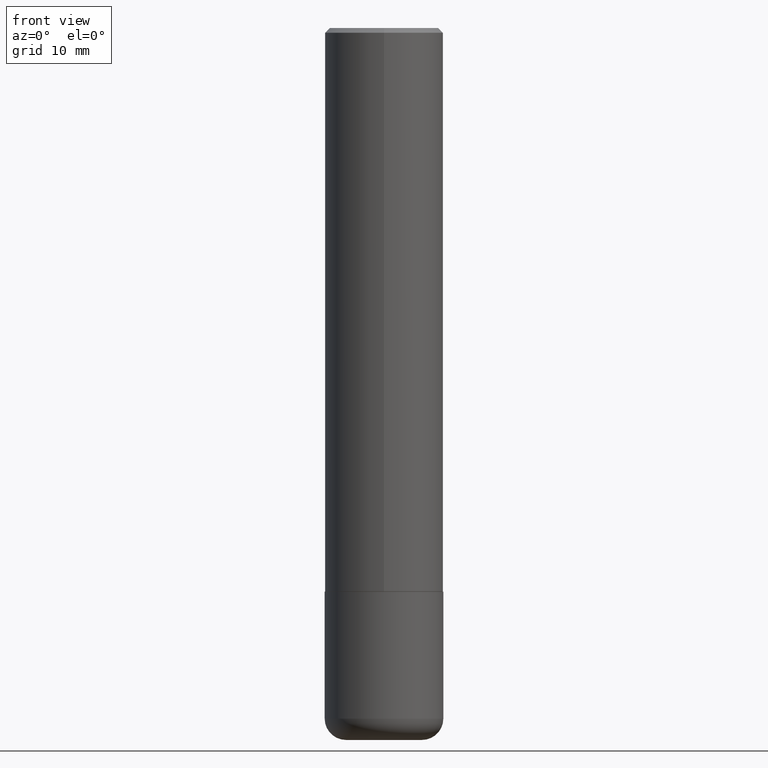
[diagram: clean part render]
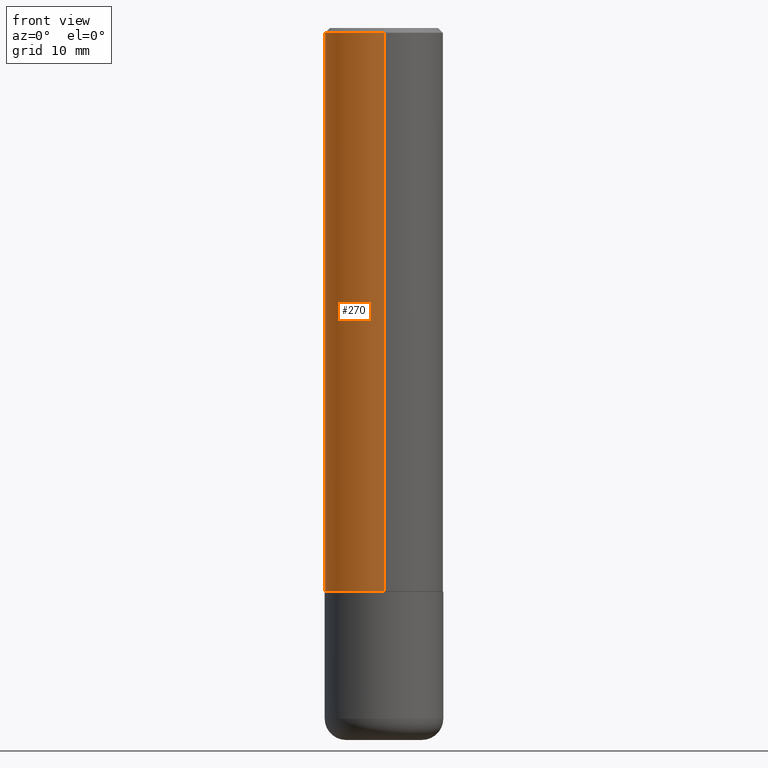
[diagram: same view with one face highlighted and labeled with its STEP entity id]
A machine part, front view. The second image highlights one B-rep face of the part: STEP entity #270.
In plain terms, the highlighted cylindrical surface (partial cylindrical patch) has radius 6.35 mm, axis along (-0, 0, 1).
Its self-contained STEP definition (entity closure, byte-faithful):
#3 = DIRECTION ( 'NONE',  ( -6.982962677686265922E-15, -1.000000000000000000, 3.500180241882337655E-15 ) ) ;
#18 = CARTESIAN_POINT ( 'NONE',  ( 0.000000000000000000, 0.000000000000000000, 0.000000000000000000 ) ) ;
#40 = EDGE_CURVE ( 'NONE', #59, #176, #186, .T. ) ;
#48 = LINE ( 'NONE', #112, #110 ) ;
#53 = EDGE_CURVE ( 'NONE', #59, #414, #48, .T. ) ;
#54 = DIRECTION ( 'NONE',  ( -6.982962677686265922E-15, -1.000000000000000000, 3.278217592397112312E-15 ) ) ;
#59 = VERTEX_POINT ( 'NONE', #243 ) ;
#60 = AXIS2_PLACEMENT_3D ( 'NONE', #18, #223, #125 ) ;
#96 = CARTESIAN_POINT ( 'NONE',  ( 5.804725445999048016E-29, -8.289947404777387606E-15, -2.374000000000000110 ) ) ;
#98 = AXIS2_PLACEMENT_3D ( 'NONE', #281, #412, #3 ) ;
#110 = VECTOR ( 'NONE', #409, 39.37007874015748143 ) ;
#111 = CARTESIAN_POINT ( 'NONE',  ( -1.745740669421567467E-15, -0.2500000000000001110, 8.729936188687228278E-16 ) ) ;
#112 = CARTESIAN_POINT ( 'NONE',  ( 1.776356839400251254E-15, 0.2500000000000001110, -8.729936188687228278E-16 ) ) ;
#114 = VERTEX_POINT ( 'NONE', #225 ) ;
#125 = DIRECTION ( 'NONE',  ( -6.982962677686266711E-15, -1.000000000000000000, 3.491974475474889733E-15 ) ) ;
#133 = ORIENTED_EDGE ( 'NONE', *, *, #380, .F. ) ;
#137 = AXIS2_PLACEMENT_3D ( 'NONE', #96, #335, #54 ) ;
#140 = CARTESIAN_POINT ( 'NONE',  ( -1.745740669421510471E-15, -0.2500000000000085487, -2.373999999999999222 ) ) ;
#142 = CARTESIAN_POINT ( 'NONE',  ( 1.745740669421566678E-15, 0.2499999999999998890, -0.02000000000000096839 ) ) ;
#176 = VERTEX_POINT ( 'NONE', #140 ) ;
#178 = ORIENTED_EDGE ( 'NONE', *, *, #40, .T. ) ;
#183 = EDGE_CURVE ( 'NONE', #176, #114, #401, .T. ) ;
#186 = CIRCLE ( 'NONE', #137, 0.2500000000000002776 ) ;
#223 = DIRECTION ( 'NONE',  ( -2.445124450715689953E-29, 3.491974475474889339E-15, 1.000000000000000000 ) ) ;
#225 = CARTESIAN_POINT ( 'NONE',  ( -1.715124499442881905E-15, -0.2500000000000000555, -0.01999999999999921979 ) ) ;
#231 = DIRECTION ( 'NONE',  ( -2.445124450715689673E-29, 3.491974475474889339E-15, 1.000000000000000000 ) ) ;
#243 = CARTESIAN_POINT ( 'NONE',  ( 1.776356839400280836E-15, 0.2499999999999919786, -2.374000000000000998 ) ) ;
#246 = ORIENTED_EDGE ( 'NONE', *, *, #53, .F. ) ;
#251 = CYLINDRICAL_SURFACE ( 'NONE', #60, 0.2500000000000001110 ) ;
#270 = ADVANCED_FACE ( 'NONE', ( #344 ), #251, .T. ) ;
#280 = ORIENTED_EDGE ( 'NONE', *, *, #183, .T. ) ;
#281 = CARTESIAN_POINT ( 'NONE',  ( 4.890248901431403027E-31, -6.983948950949810725E-17, -0.02000000000000009409 ) ) ;
#287 = EDGE_LOOP ( 'NONE', ( #246, #178, #280, #133 ) ) ;
#309 = CIRCLE ( 'NONE', #98, 0.2499999999999999722 ) ;
#319 = VECTOR ( 'NONE', #231, 39.37007874015748143 ) ;
#335 = DIRECTION ( 'NONE',  ( -2.445124450715689953E-29, 3.491974475474889339E-15, 1.000000000000000000 ) ) ;
#344 = FACE_OUTER_BOUND ( 'NONE', #287, .T. ) ;
#380 = EDGE_CURVE ( 'NONE', #414, #114, #309, .T. ) ;
#401 = LINE ( 'NONE', #111, #319 ) ;
#409 = DIRECTION ( 'NONE',  ( -2.445124450715689673E-29, 3.491974475474889339E-15, 1.000000000000000000 ) ) ;
#412 = DIRECTION ( 'NONE',  ( -2.445124450715689953E-29, 3.491974475474889339E-15, 1.000000000000000000 ) ) ;
#414 = VERTEX_POINT ( 'NONE', #142 ) ;